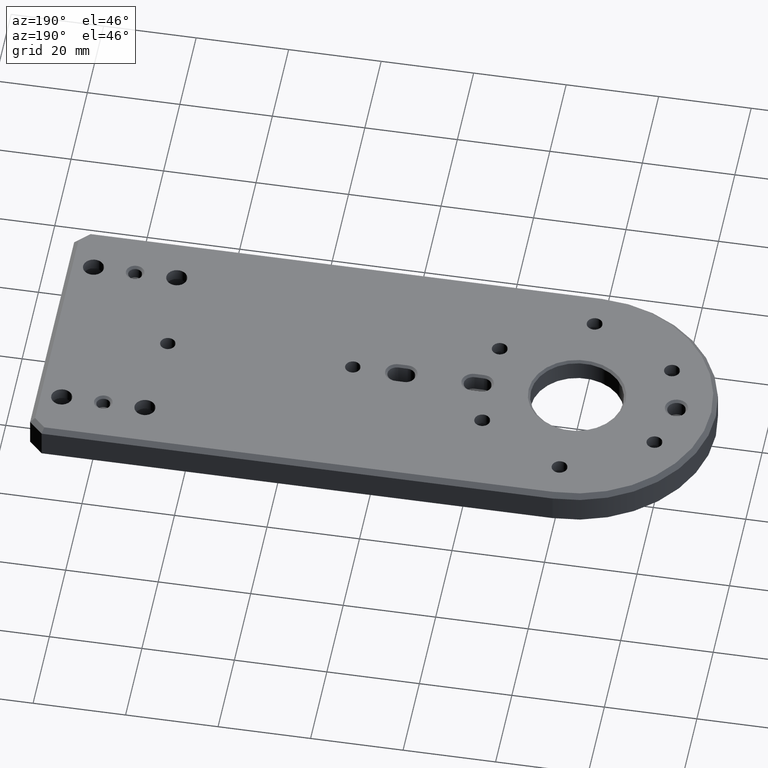
[diagram: clean part render]
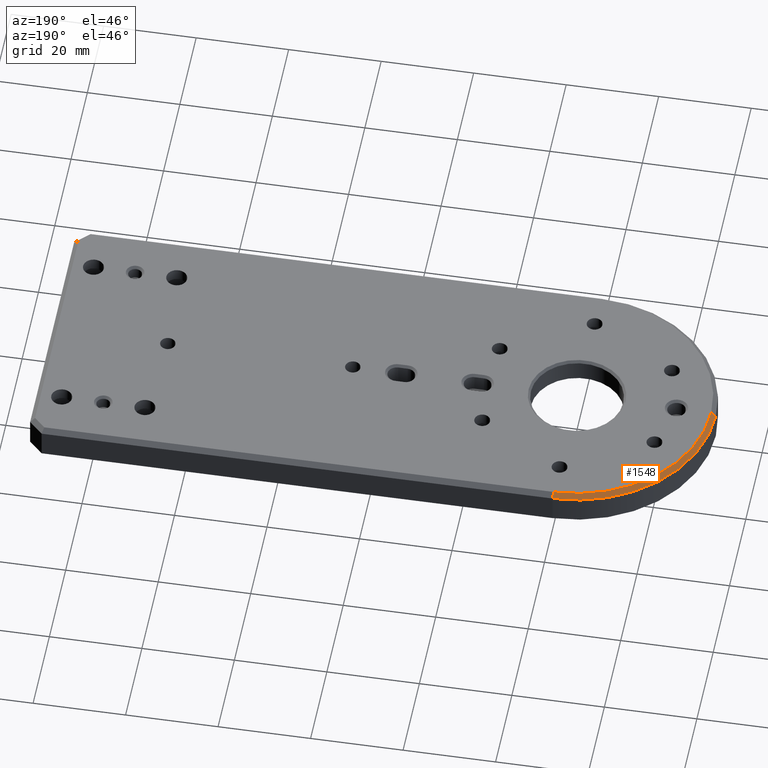
[diagram: same view with one face highlighted and labeled with its STEP entity id]
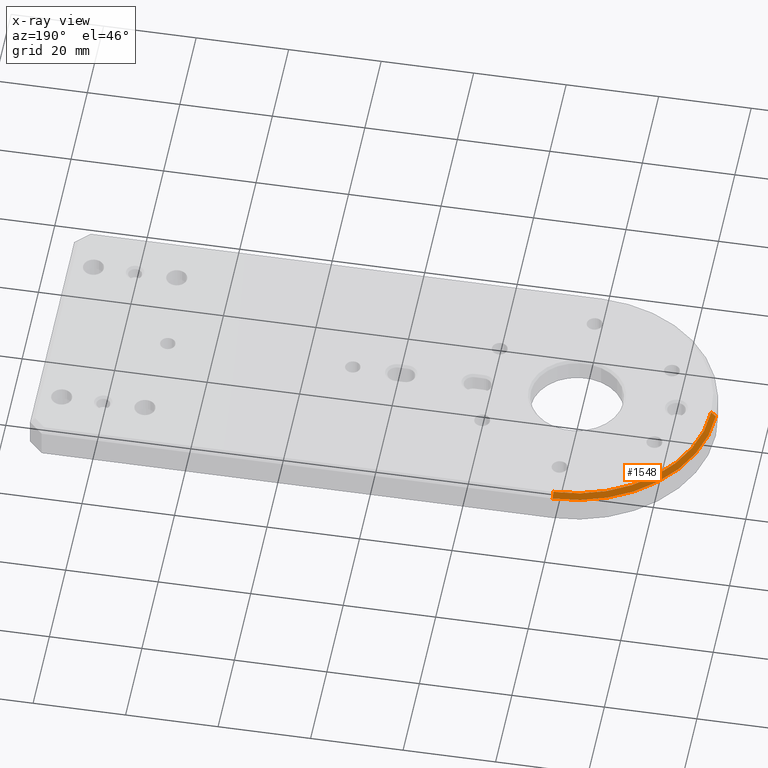
[diagram: x-ray of the same camera — body ghosted, the highlighted face saturated]
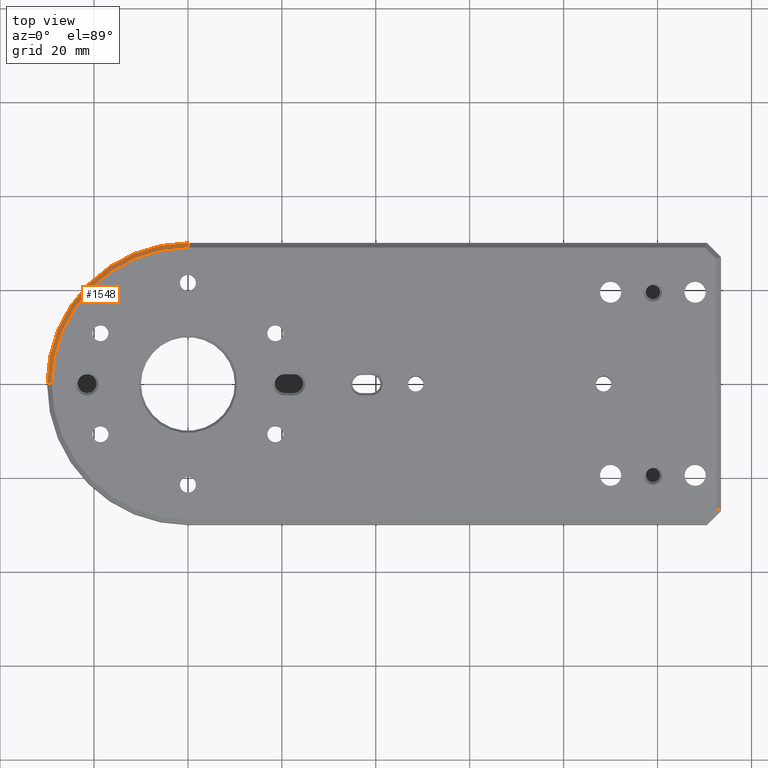
[diagram: same view with one face highlighted and labeled with its STEP entity id]
A machine part, auxiliary view. The second image highlights one B-rep face of the part: STEP entity #1548.
The next image is the same camera in x-ray: the body ghosted, the highlighted face saturated — about 0% of this face is hidden behind the body in this view.
A second angle (top view) of the same face is appended — the face is thin or edge-on in the first view.
In plain terms, the highlighted conical surface has half-angle 45 deg.
Its self-contained STEP definition (entity closure, byte-faithful):
#160 = VECTOR ( 'NONE', #640, 1000.000000000000114 ) ;
#254 = FACE_OUTER_BOUND ( 'NONE', #1766, .T. ) ;
#262 = CARTESIAN_POINT ( 'NONE',  ( 1.775737858763660832E-15, 28.99999999999998579, 0.0000000000000000000 ) ) ;
#539 = ORIENTED_EDGE ( 'NONE', *, *, #2715, .F. ) ;
#585 = LINE ( 'NONE', #3431, #160 ) ;
#622 = ORIENTED_EDGE ( 'NONE', *, *, #3387, .F. ) ;
#640 = DIRECTION ( 'NONE',  ( -0.7071067811865474617, 0.0000000000000000000, -0.7071067811865474617 ) ) ;
#833 = VERTEX_POINT ( 'NONE', #3394 ) ;
#840 = ORIENTED_EDGE ( 'NONE', *, *, #2994, .F. ) ;
#972 = VERTEX_POINT ( 'NONE', #1231 ) ;
#1103 = DIRECTION ( 'NONE',  ( 0.0000000000000000000, 0.0000000000000000000, -1.000000000000000000 ) ) ;
#1139 = AXIS2_PLACEMENT_3D ( 'NONE', #3577, #1871, #1596 ) ;
#1231 = CARTESIAN_POINT ( 'NONE',  ( -28.99999999999998579, 0.0000000000000000000, 0.0000000000000000000 ) ) ;
#1334 = CIRCLE ( 'NONE', #1620, 30.00000000000000000 ) ;
#1372 = CARTESIAN_POINT ( 'NONE',  ( 0.0000000000000000000, 0.0000000000000000000, 0.0000000000000000000 ) ) ;
#1548 = ADVANCED_FACE ( 'NONE', ( #254 ), #2978, .T. ) ;
#1596 = DIRECTION ( 'NONE',  ( 1.000000000000000000, 0.0000000000000000000, 0.0000000000000000000 ) ) ;
#1620 = AXIS2_PLACEMENT_3D ( 'NONE', #2392, #3340, #1861 ) ;
#1766 = EDGE_LOOP ( 'NONE', ( #840, #622, #2996, #539 ) ) ;
#1861 = DIRECTION ( 'NONE',  ( 1.000000000000000000, 0.0000000000000000000, 0.0000000000000000000 ) ) ;
#1871 = DIRECTION ( 'NONE',  ( 0.0000000000000000000, 0.0000000000000000000, 1.000000000000000000 ) ) ;
#2072 = CARTESIAN_POINT ( 'NONE',  ( -30.00000000000000000, 0.0000000000000000000, -1.000000000000014655 ) ) ;
#2227 = DIRECTION ( 'NONE',  ( -1.000000000000000000, 0.0000000000000000000, 0.0000000000000000000 ) ) ;
#2334 = CARTESIAN_POINT ( 'NONE',  ( 1.775737858763660832E-15, 28.99999999999998579, 0.0000000000000000000 ) ) ;
#2392 = CARTESIAN_POINT ( 'NONE',  ( 0.0000000000000000000, 0.0000000000000000000, -1.000000000000014655 ) ) ;
#2398 = VECTOR ( 'NONE', #3145, 1000.000000000000114 ) ;
#2591 = VERTEX_POINT ( 'NONE', #2072 ) ;
#2715 = EDGE_CURVE ( 'NONE', #2591, #833, #1334, .T. ) ;
#2830 = CIRCLE ( 'NONE', #1139, 28.99999999999998579 ) ;
#2912 = EDGE_CURVE ( 'NONE', #3483, #833, #3098, .T. ) ;
#2978 = CONICAL_SURFACE ( 'NONE', #3611, 28.99999999999998579, 0.7853981633974482790 ) ;
#2994 = EDGE_CURVE ( 'NONE', #972, #2591, #585, .T. ) ;
#2996 = ORIENTED_EDGE ( 'NONE', *, *, #2912, .T. ) ;
#3098 = LINE ( 'NONE', #2334, #2398 ) ;
#3145 = DIRECTION ( 'NONE',  ( 4.329780281177475057E-17, 0.7071067811865474617, -0.7071067811865474617 ) ) ;
#3340 = DIRECTION ( 'NONE',  ( 0.0000000000000000000, 0.0000000000000000000, -1.000000000000000000 ) ) ;
#3387 = EDGE_CURVE ( 'NONE', #3483, #972, #2830, .T. ) ;
#3394 = CARTESIAN_POINT ( 'NONE',  ( 1.836970198721029589E-15, 30.00000000000000000, -1.000000000000014655 ) ) ;
#3431 = CARTESIAN_POINT ( 'NONE',  ( -28.99999999999998579, 0.0000000000000000000, 0.0000000000000000000 ) ) ;
#3483 = VERTEX_POINT ( 'NONE', #262 ) ;
#3577 = CARTESIAN_POINT ( 'NONE',  ( 0.0000000000000000000, 0.0000000000000000000, 0.0000000000000000000 ) ) ;
#3611 = AXIS2_PLACEMENT_3D ( 'NONE', #1372, #1103, #2227 ) ;